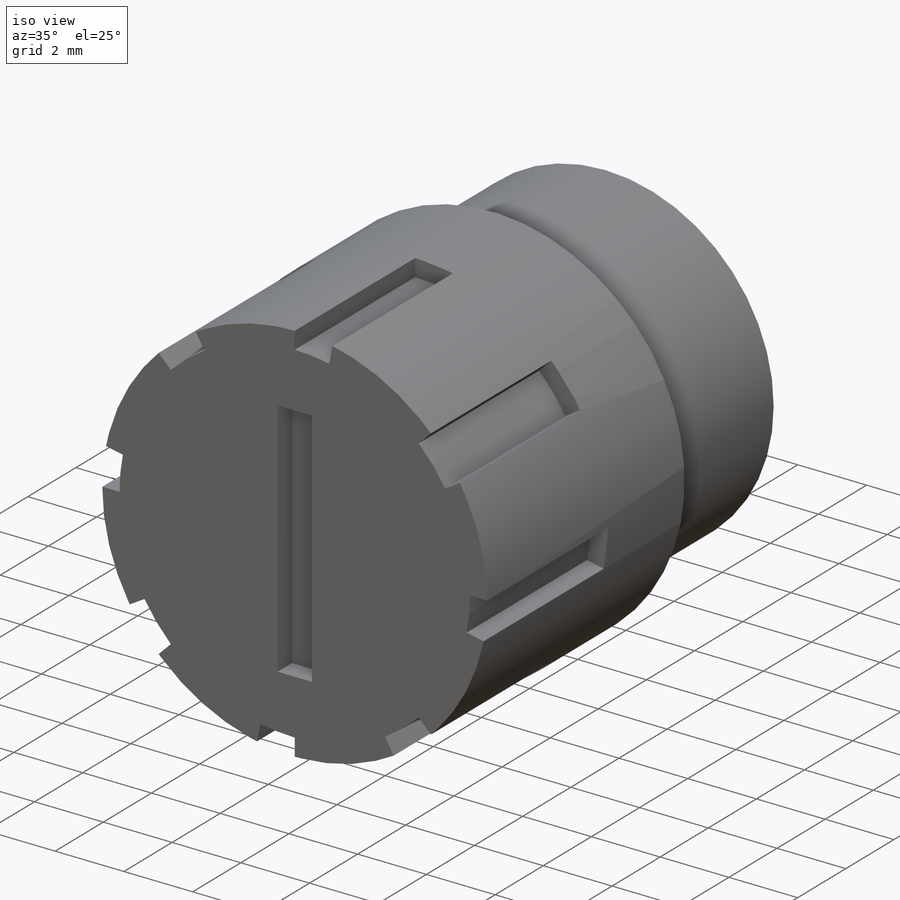
[diagram: iso view]
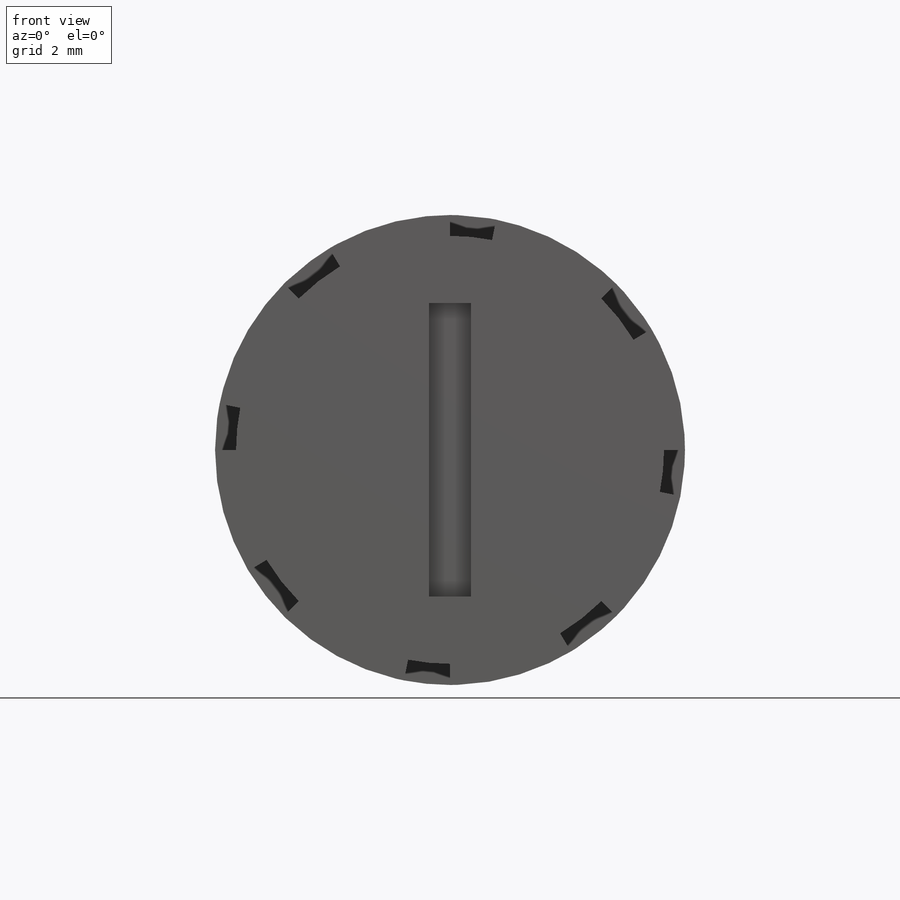
[diagram: front view]
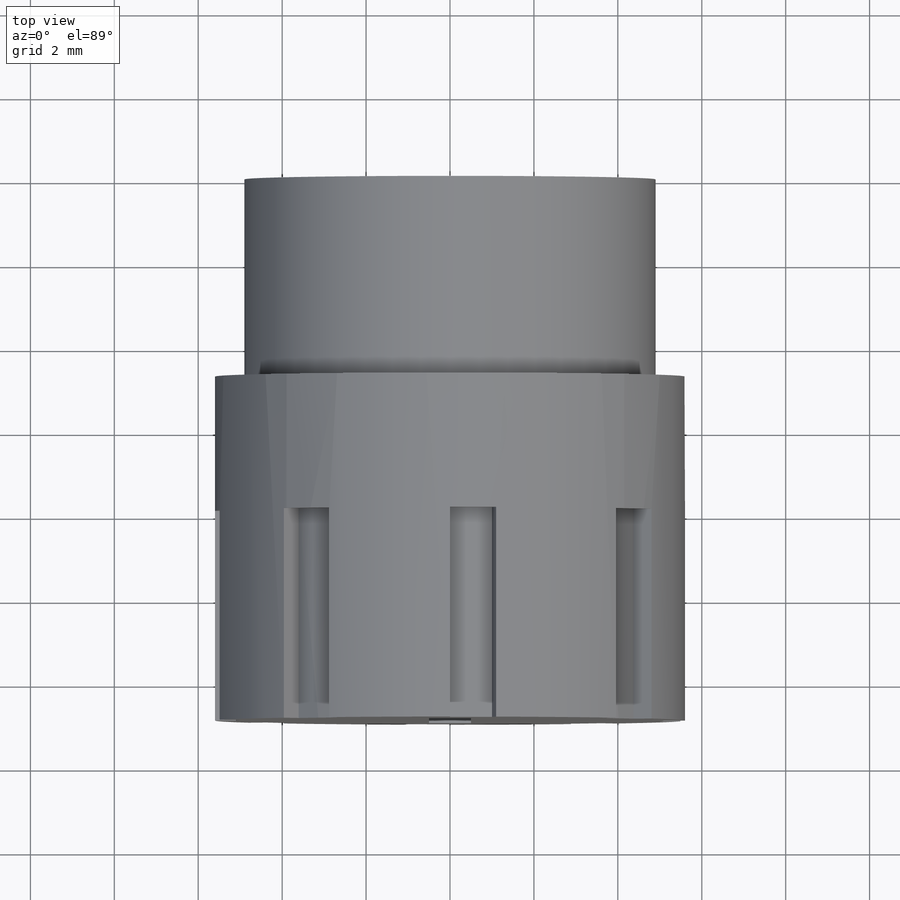
[diagram: top view]
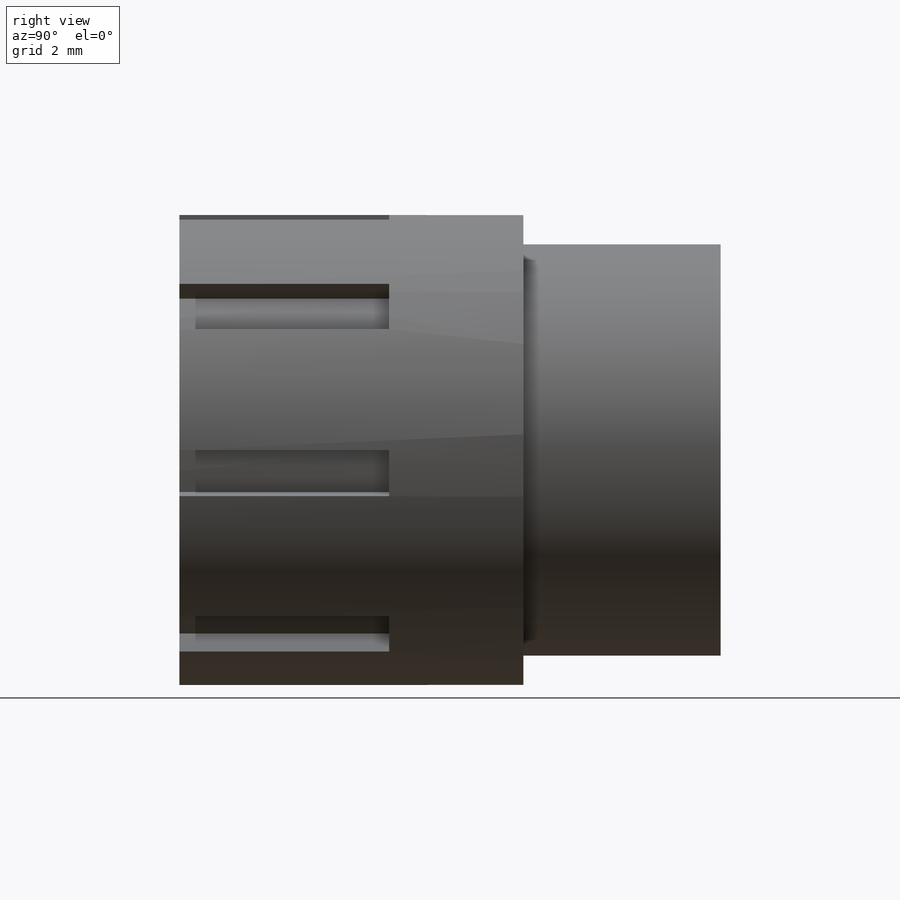
[diagram: right view]
SOLIDWORKS PART (.sldprt)
format: sldprt  version: not decoded by parser v0  size: 510,976 bytes
history: native  units: mm
features: sketch x9, cut_extrude x4, extrude x3, material x1, helix x1, sweep x1 (+16 scaffold rows collapsed)
feature tree (35):
  scaffold x16  (default folders/planes/origin — collapsed)
  material  "Titanium"
  sketch  "Sketch1"  dims[D1=9.525mm]
  helix  "Helix/Spiral1"  Pitch=13.2mm
  sketch  "Sketch3"  dims[c1.D1=3.9mm c1.D2=3.5mm c1.D3=0.6mm c1.D4=1.2mm c2.D1=3.6mm c2.D2=4.0mm c2.D3=0.65mm c2.D4=1.2mm c2.D5=4.95mm c2.D6=4.75mm c2.D7=0.05mm]
  sweep  "Sweep2"
  sketch  "Sketch4"  dims[D1=3.6mm]
  extrude  "Extrude1"  Depth=11.5mm
  sketch  "Sketch5"
  cut_extrude  "Extrude2"  [1 undecoded]
  sketch  "Sketch6"  dims[D1=6.0mm]
  extrude  "Extrude3"  Depth=1.4mm
  sketch  "Sketch7"
  cut_extrude  "Extrude4"  [1 undecoded]
  sketch  "Sketch8"  dims[D1=0.5mm D2=0.5mm D3=3.5mm D4=3.5mm]
  cut_extrude  "Extrude5"  Depth=0.6mm
  sketch  "Sketch9"  dims[D1=3.9mm]
  extrude  "Extrude6"  Depth=6.8mm
  sketch  "Sketch11"  dims[D1=4.7625mm]
  cut_extrude  "Extrude7"  Depth=5mm
decode coverage: 13 of 18 modeling features carry decoded parameters
note: 2 parameter values undecoded
note: suppression state not decoded; provenance and decode notes live in map.json
